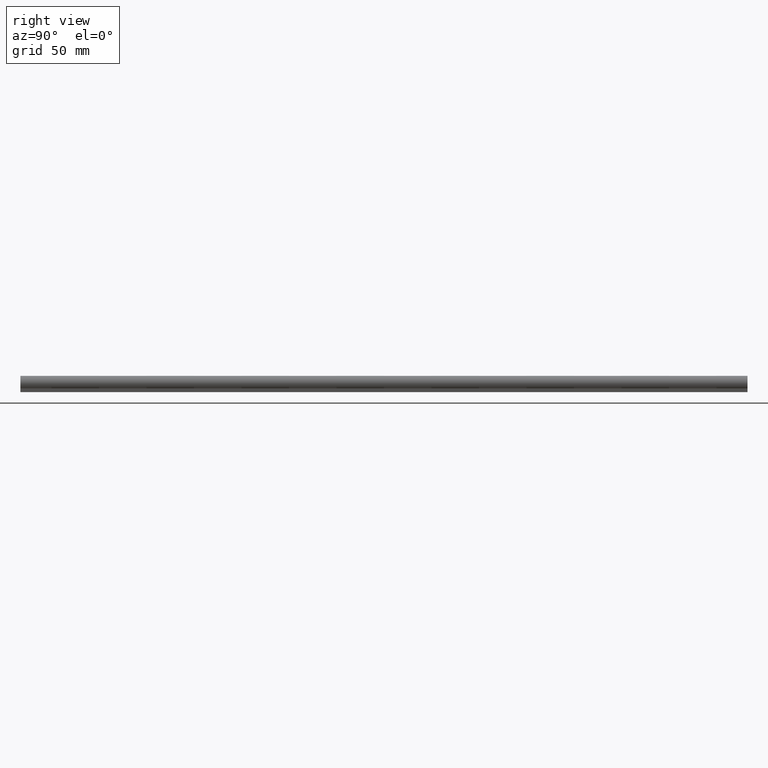
[diagram: clean part render]
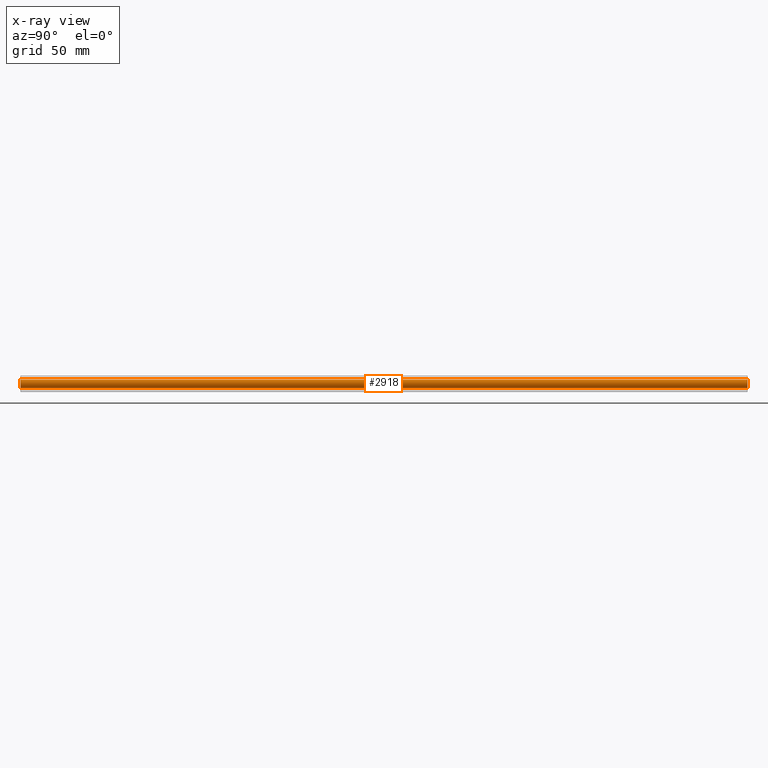
[diagram: x-ray — body ghosted, one internal face saturated and labeled with its STEP entity id]
A machine part, right view, then the same camera in x-ray: the body is ghosted and one INTERNAL B-rep face — a face not visible from any outside direction — is saturated and labeled: STEP entity #2918.
In plain terms, the highlighted cylindrical surface (edge-blend (fillet) strip) has radius 1.75 mm, axis along (0, 1, 0).
Its self-contained STEP definition (entity closure, byte-faithful):
#101 = ORIENTED_EDGE ( 'NONE', *, *, #866, .F. ) ;
#226 = VERTEX_POINT ( 'NONE', #2621 ) ;
#234 = AXIS2_PLACEMENT_3D ( 'NONE', #1196, #3192, #2895 ) ;
#246 = DIRECTION ( 'NONE',  ( 0.0000000000000000000, 0.0000000000000000000, 1.000000000000000000 ) ) ;
#263 = VERTEX_POINT ( 'NONE', #3489 ) ;
#628 = ORIENTED_EDGE ( 'NONE', *, *, #2361, .T. ) ;
#751 = ORIENTED_EDGE ( 'NONE', *, *, #2618, .T. ) ;
#866 = EDGE_CURVE ( 'NONE', #226, #1141, #3513, .T. ) ;
#950 = CARTESIAN_POINT ( 'NONE',  ( 2.143131898507868100E-016, -12.80000000000000100, -1.749999999999999800 ) ) ;
#1051 = FACE_OUTER_BOUND ( 'NONE', #2836, .T. ) ;
#1141 = VERTEX_POINT ( 'NONE', #1916 ) ;
#1196 = CARTESIAN_POINT ( 'NONE',  ( 0.0000000000000000000, -12.80000000000000100, 0.0000000000000000000 ) ) ;
#1248 = VECTOR ( 'NONE', #1969, 1000.000000000000000 ) ;
#1312 = EDGE_CURVE ( 'NONE', #1141, #1614, #2928, .T. ) ;
#1614 = VERTEX_POINT ( 'NONE', #2778 ) ;
#1623 = CIRCLE ( 'NONE', #3682, 1.749999999999999800 ) ;
#1659 = CARTESIAN_POINT ( 'NONE',  ( 0.0000000000000000000, -12.80000000000000100, 0.0000000000000000000 ) ) ;
#1710 = CYLINDRICAL_SURFACE ( 'NONE', #234, 1.749999999999999800 ) ;
#1749 = CARTESIAN_POINT ( 'NONE',  ( 0.0000000000000000000, 287.1999999999999900, 0.0000000000000000000 ) ) ;
#1916 = CARTESIAN_POINT ( 'NONE',  ( 0.0000000000000000000, 287.1999999999999900, 1.749999999999999800 ) ) ;
#1969 = DIRECTION ( 'NONE',  ( 0.0000000000000000000, 1.000000000000000000, 0.0000000000000000000 ) ) ;
#2174 = DIRECTION ( 'NONE',  ( 0.0000000000000000000, 1.000000000000000000, 0.0000000000000000000 ) ) ;
#2218 = LINE ( 'NONE', #950, #3652 ) ;
#2350 = DIRECTION ( 'NONE',  ( 0.0000000000000000000, 1.000000000000000000, 0.0000000000000000000 ) ) ;
#2357 = ORIENTED_EDGE ( 'NONE', *, *, #1312, .F. ) ;
#2361 = EDGE_CURVE ( 'NONE', #226, #263, #1623, .T. ) ;
#2583 = CARTESIAN_POINT ( 'NONE',  ( 0.0000000000000000000, -12.80000000000000100, 1.749999999999999800 ) ) ;
#2618 = EDGE_CURVE ( 'NONE', #263, #1614, #2218, .T. ) ;
#2621 = CARTESIAN_POINT ( 'NONE',  ( 0.0000000000000000000, -12.80000000000000100, 1.749999999999999800 ) ) ;
#2778 = CARTESIAN_POINT ( 'NONE',  ( 2.143131898507868100E-016, 287.1999999999999900, -1.749999999999999800 ) ) ;
#2836 = EDGE_LOOP ( 'NONE', ( #628, #751, #2357, #101 ) ) ;
#2856 = DIRECTION ( 'NONE',  ( 0.0000000000000000000, 0.0000000000000000000, 1.000000000000000000 ) ) ;
#2895 = DIRECTION ( 'NONE',  ( 0.0000000000000000000, 0.0000000000000000000, 1.000000000000000000 ) ) ;
#2918 = ADVANCED_FACE ( 'NONE', ( #1051 ), #1710, .T. ) ;
#2928 = CIRCLE ( 'NONE', #3059, 1.749999999999999800 ) ;
#3059 = AXIS2_PLACEMENT_3D ( 'NONE', #1749, #3153, #2856 ) ;
#3153 = DIRECTION ( 'NONE',  ( 0.0000000000000000000, 1.000000000000000000, 0.0000000000000000000 ) ) ;
#3192 = DIRECTION ( 'NONE',  ( 0.0000000000000000000, 1.000000000000000000, 0.0000000000000000000 ) ) ;
#3489 = CARTESIAN_POINT ( 'NONE',  ( 2.143131898507868100E-016, -12.80000000000000100, -1.749999999999999800 ) ) ;
#3513 = LINE ( 'NONE', #2583, #1248 ) ;
#3652 = VECTOR ( 'NONE', #2350, 1000.000000000000000 ) ;
#3682 = AXIS2_PLACEMENT_3D ( 'NONE', #1659, #2174, #246 ) ;